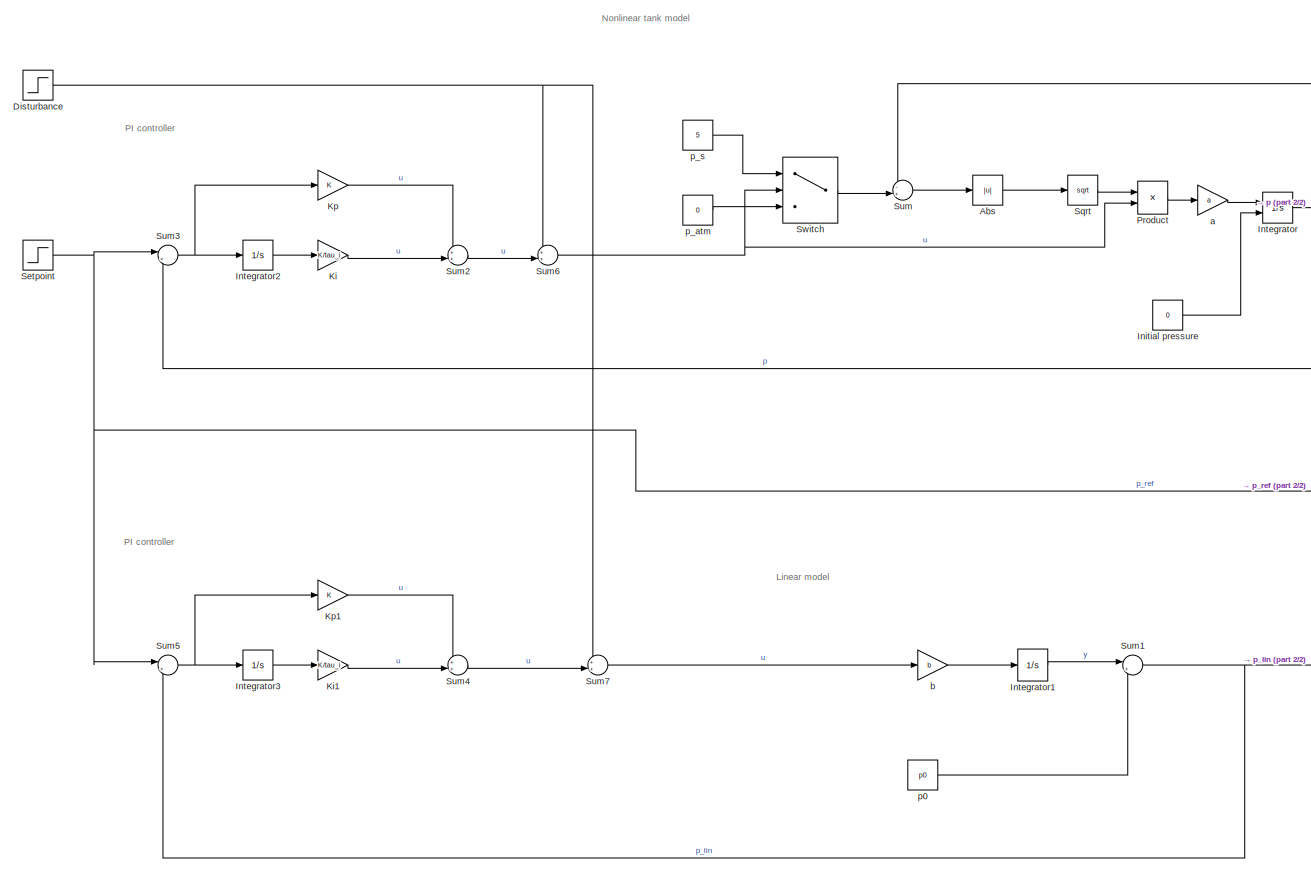
[diagram: root canvas - part 1/2, most of the canvas]
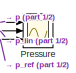
[diagram: root canvas - part 2/2, top right region]
MODEL slx_b69d9e5b609d
KIND model
CONFIG AbsTol = auto
CONFIG EnableMultiTasking = off
CONFIG FixedStep = auto
CONFIG MaxStep = auto
CONFIG MinStep = auto
CONFIG RelTol = 1e-3
CONFIG SampleTimeConstraint = Unconstrained
CONFIG Solver = VariableStepAuto
CONFIG SolverName = VariableStepAuto
CONFIG StartTime = 0.0
CONFIG StopTime = 16
WORKSPACE source: MATLAB code (in-file)
WORKSPACE V = 0.4
WORKSPACE alpha = 1.5/3  (= 0.5)
WORKSPACE p_s = 6
BLOCK [Abs] Abs
  SaturateOnIntegerOverflow = off
BLOCK [Step] Disturbance
  SampleTime = 0
  Time = 10
BLOCK [Constant] Initial pressure
  OutDataTypeStr = Inherit: Inherit via back propagation
  Value = 0
BLOCK [Integrator] Integrator
  InitialCondition = 1
  InitialConditionSource = external
  LimitOutput = on
  LowerSaturationLimit = 0
  Ports = [2, 1]
BLOCK [Integrator] Integrator1
  Ports = [1, 1]
BLOCK [Integrator] Integrator2
  Ports = [1, 1]
BLOCK [Integrator] Integrator3
  Ports = [1, 1]
BLOCK [Gain] Ki
  Gain = K/tau_i
BLOCK [Gain] Ki1
  Gain = K/tau_i
BLOCK [Gain] Kp
  Gain = K
BLOCK [Gain] Kp1
  Gain = K
BLOCK [Scope] Pressure
  Floating = off
  NumInputPorts = 3
  Ports = [3]
  ScopeSpecificationString = Simulink.scopes.TimeScopeBlockCfg('CurrentConfiguration', extmgr.ConfigurationSet(extmgr.Configuration('Core','General UI',true),extmgr.Configuration('Core','Source UI',true),extmgr.Configuration('Sources','WiredSimulink',true),extmgr.Configuration('Visuals','Time Domain',true,'SerializedDisplays',{struct('MinYLimReal','-1.32487','MaxYLimReal','5.9657','YLabelReal','','MinYLimMag','0.00000','MaxYL...<+1400ch>
BLOCK [Product] Product
  Ports = [2, 1]
BLOCK [Step] Setpoint
  After = 4
  SampleTime = 0
  Time = 2
BLOCK [Sqrt] Sqrt
BLOCK [Sum] Sum
  Inputs = -+|
  Ports = [2, 1]
BLOCK [Sum] Sum1
  Inputs = |++
  Ports = [2, 1]
BLOCK [Sum] Sum2
  Inputs = ++|
  Ports = [2, 1]
BLOCK [Sum] Sum3
  Inputs = |+-
  Ports = [2, 1]
BLOCK [Sum] Sum4
  Inputs = ++|
  Ports = [2, 1]
BLOCK [Sum] Sum5
  Inputs = |+-
  Ports = [2, 1]
BLOCK [Sum] Sum6
  Inputs = ++|
  Ports = [2, 1]
BLOCK [Sum] Sum7
  Inputs = ++|
  Ports = [2, 1]
BLOCK [Switch] Switch
  Criteria = u2 > Threshold
  InputSameDT = off
  SaturateOnIntegerOverflow = off
BLOCK [Gain] a
  Gain = a
BLOCK [Gain] b
  Gain = b
BLOCK [Constant] p0
  Value = p0
BLOCK [Constant] p_atm
  Value = 0
BLOCK [Constant] p_s
  Value = 5
ANNOTATION (root): Linear model
ANNOTATION (root): Nonlinear tank model
ANNOTATION (root): PI controller
LINE Abs:1 -> Sqrt:1
NET Disturbance:1 -> Sum6:1, Sum7:1
LINE Initial pressure:1 -> Integrator:2
LINE Integrator1:1 -> Sum1:1
LINE Integrator2:1 -> Ki:1
LINE Integrator3:1 -> Ki1:1
NET Integrator:1 -> Pressure:1, Sum3:2, Sum:1
LINE Ki1:1 -> Sum4:2
LINE Ki:1 -> Sum2:2
LINE Kp1:1 -> Sum4:1
LINE Kp:1 -> Sum2:1
LINE Product:1 -> a:1
NET Setpoint:1 -> Pressure:3, Sum3:1, Sum5:1
LINE Sqrt:1 -> Product:1
NET Sum1:1 -> Pressure:2, Sum5:2
LINE Sum2:1 -> Sum6:2
NET Sum3:1 -> Integrator2:1, Kp:1
LINE Sum4:1 -> Sum7:2
NET Sum5:1 -> Integrator3:1, Kp1:1
NET Sum6:1 -> Product:2, Switch:2
LINE Sum7:1 -> b:1
LINE Sum:1 -> Abs:1
LINE Switch:1 -> Sum:2
LINE a:1 -> Integrator:1
LINE b:1 -> Integrator1:1
LINE p0:1 -> Sum1:2
LINE p_atm:1 -> Switch:3
LINE p_s:1 -> Switch:1
note: NET lines group one-source signal fan-out (src -> all destinations, sorted); 1:1 wires keep LINE
